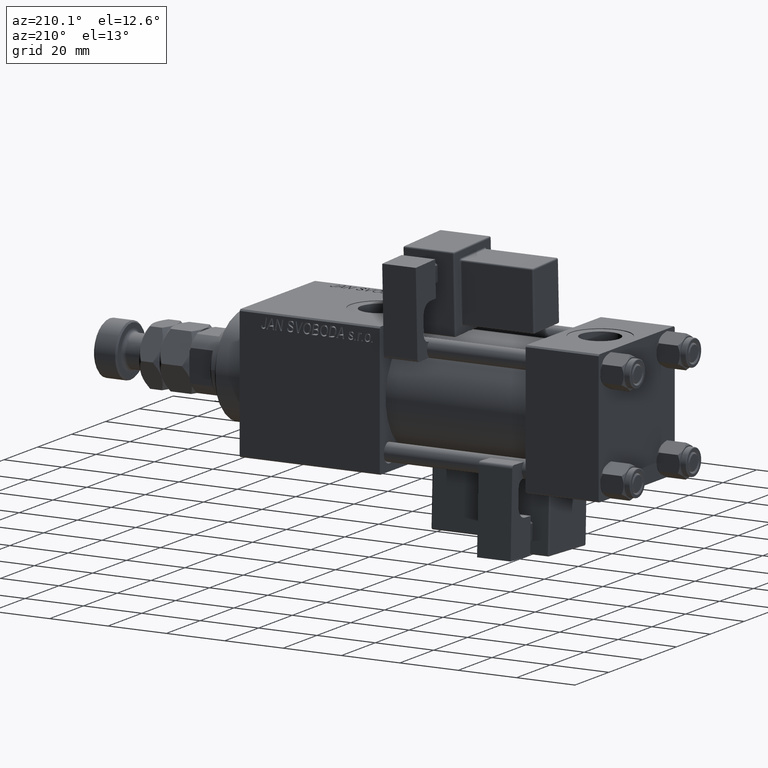
[diagram: clean part render]
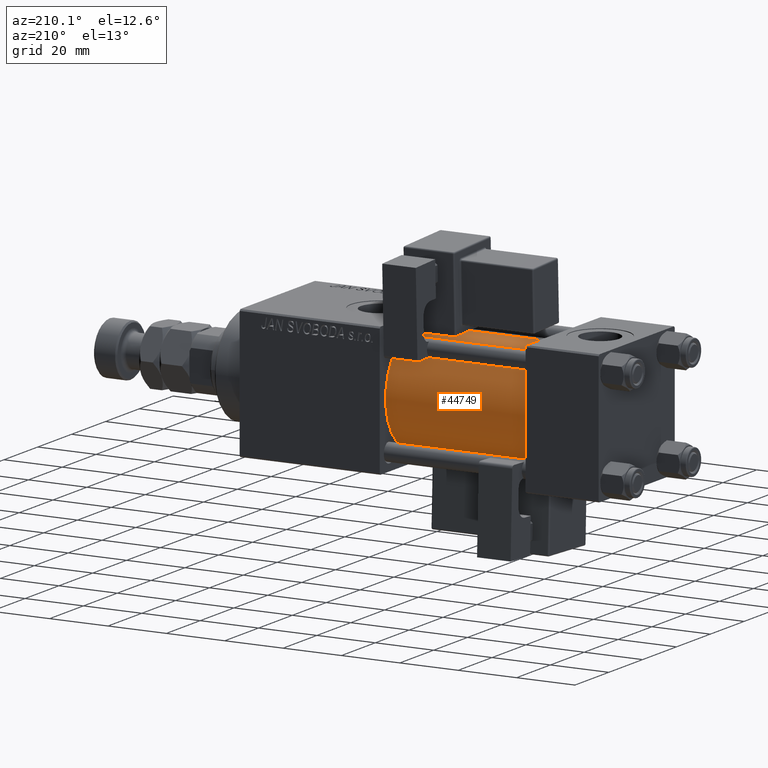
[diagram: same view with one face highlighted and labeled with its STEP entity id]
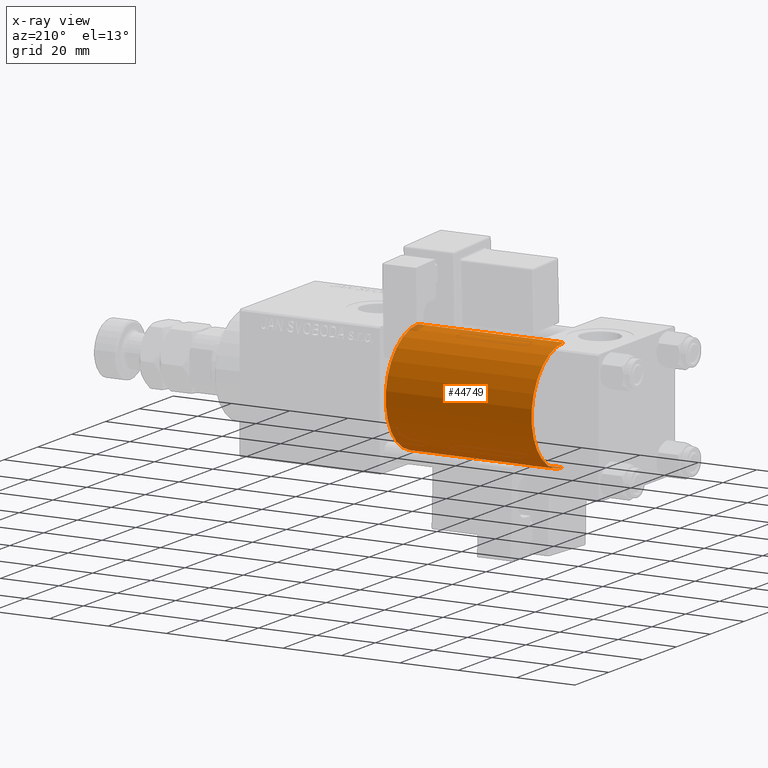
[diagram: x-ray of the same camera — body ghosted, the highlighted face saturated]
A machine part, auxiliary view. The second image highlights one B-rep face of the part: STEP entity #44749.
The next image is the same camera in x-ray: the body ghosted, the highlighted face saturated — about 0% of this face is hidden behind the body in this view.
In plain terms, the highlighted cylindrical surface (partial cylindrical patch) has radius 19 mm, axis along (-1, -0, -0).
Its self-contained STEP definition (entity closure, byte-faithful):
#487 = DIRECTION ( 'NONE',  ( 0.000000000000000000, 0.000000000000000000, -1.000000000000000000 ) ) ;
#612 = ORIENTED_EDGE ( 'NONE', *, *, #21188, .F. ) ;
#789 = EDGE_CURVE ( 'NONE', #17576, #13154, #49281, .T. ) ;
#2162 = AXIS2_PLACEMENT_3D ( 'NONE', #19574, #3083, #52193 ) ;
#3083 = DIRECTION ( 'NONE',  ( 1.000000000000000000, -0.000000000000000000, 0.000000000000000000 ) ) ;
#5988 = EDGE_LOOP ( 'NONE', ( #612, #10439, #51147, #14657 ) ) ;
#7527 = CIRCLE ( 'NONE', #2162, 19.00000000000000000 ) ;
#9692 = CARTESIAN_POINT ( 'NONE',  ( 75.00000000000001421, -2.752562955852396712E-16, -19.00000000000000000 ) ) ;
#9950 = AXIS2_PLACEMENT_3D ( 'NONE', #25722, #31386, #487 ) ;
#10439 = ORIENTED_EDGE ( 'NONE', *, *, #17462, .T. ) ;
#11577 = CARTESIAN_POINT ( 'NONE',  ( 25.00000000000000000, -2.752562955852396712E-16, -19.00000000000000000 ) ) ;
#12409 = DIRECTION ( 'NONE',  ( -1.000000000000000000, -0.000000000000000000, -0.000000000000000000 ) ) ;
#13154 = VERTEX_POINT ( 'NONE', #18090 ) ;
#13160 = CYLINDRICAL_SURFACE ( 'NONE', #51703, 19.00000000000000000 ) ;
#14657 = ORIENTED_EDGE ( 'NONE', *, *, #789, .F. ) ;
#15138 = VERTEX_POINT ( 'NONE', #11577 ) ;
#17462 = EDGE_CURVE ( 'NONE', #40824, #15138, #38167, .T. ) ;
#17576 = VERTEX_POINT ( 'NONE', #34322 ) ;
#18090 = CARTESIAN_POINT ( 'NONE',  ( 25.00000000000000000, -2.602085213965210642E-15, 19.00000000000000000 ) ) ;
#18096 = CARTESIAN_POINT ( 'NONE',  ( 75.00000000000001421, -2.602085213965210642E-15, 0.000000000000000000 ) ) ;
#19574 = CARTESIAN_POINT ( 'NONE',  ( 25.00000000000000000, -2.602085213965210642E-15, 0.000000000000000000 ) ) ;
#20756 = DIRECTION ( 'NONE',  ( -1.000000000000000000, -0.000000000000000000, -0.000000000000000000 ) ) ;
#21188 = EDGE_CURVE ( 'NONE', #40824, #17576, #34474, .T. ) ;
#22467 = DIRECTION ( 'NONE',  ( -1.000000000000000000, -0.000000000000000000, -0.000000000000000000 ) ) ;
#25722 = CARTESIAN_POINT ( 'NONE',  ( 75.00000000000001421, -2.602085213965210642E-15, 0.000000000000000000 ) ) ;
#25991 = EDGE_CURVE ( 'NONE', #15138, #13154, #7527, .T. ) ;
#27314 = VECTOR ( 'NONE', #12409, 1000.000000000000000 ) ;
#28530 = VECTOR ( 'NONE', #20756, 1000.000000000000000 ) ;
#29881 = FACE_OUTER_BOUND ( 'NONE', #5988, .T. ) ;
#31386 = DIRECTION ( 'NONE',  ( 1.000000000000000000, 0.000000000000000000, 0.000000000000000000 ) ) ;
#34322 = CARTESIAN_POINT ( 'NONE',  ( 75.00000000000001421, -2.602085213965210642E-15, 19.00000000000000000 ) ) ;
#34474 = CIRCLE ( 'NONE', #9950, 19.00000000000000000 ) ;
#38167 = LINE ( 'NONE', #41755, #27314 ) ;
#40824 = VERTEX_POINT ( 'NONE', #9692 ) ;
#41755 = CARTESIAN_POINT ( 'NONE',  ( 75.00000000000001421, -2.752562955852396712E-16, -19.00000000000000000 ) ) ;
#44749 = ADVANCED_FACE ( 'NONE', ( #29881 ), #13160, .T. ) ;
#46628 = DIRECTION ( 'NONE',  ( 0.000000000000000000, 0.000000000000000000, 1.000000000000000000 ) ) ;
#49281 = LINE ( 'NONE', #53660, #28530 ) ;
#51147 = ORIENTED_EDGE ( 'NONE', *, *, #25991, .T. ) ;
#51703 = AXIS2_PLACEMENT_3D ( 'NONE', #18096, #22467, #46628 ) ;
#52193 = DIRECTION ( 'NONE',  ( 0.000000000000000000, 0.000000000000000000, 1.000000000000000000 ) ) ;
#53660 = CARTESIAN_POINT ( 'NONE',  ( 75.00000000000001421, -2.602085213965210642E-15, 19.00000000000000000 ) ) ;